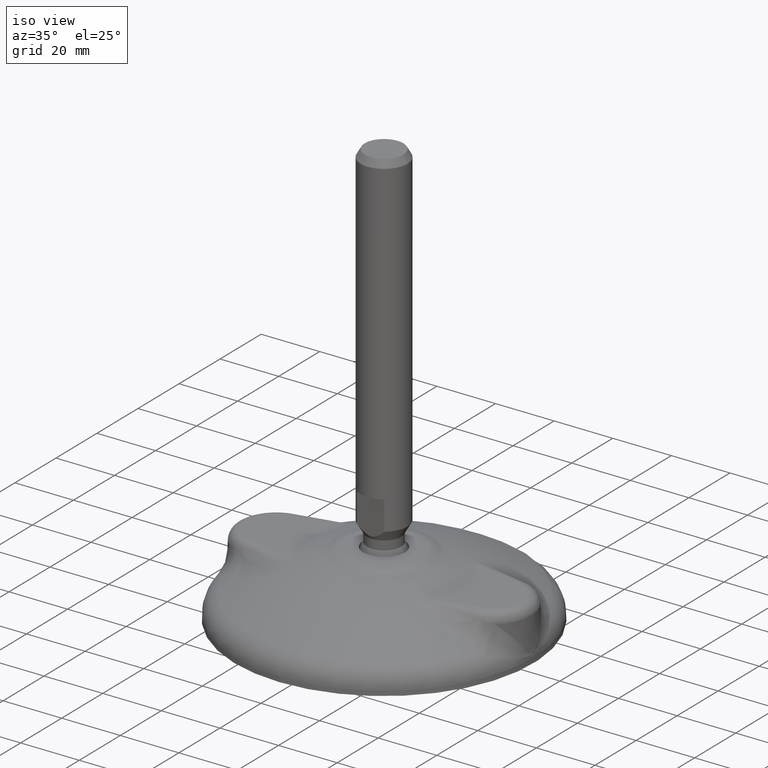
[diagram: clean part render]
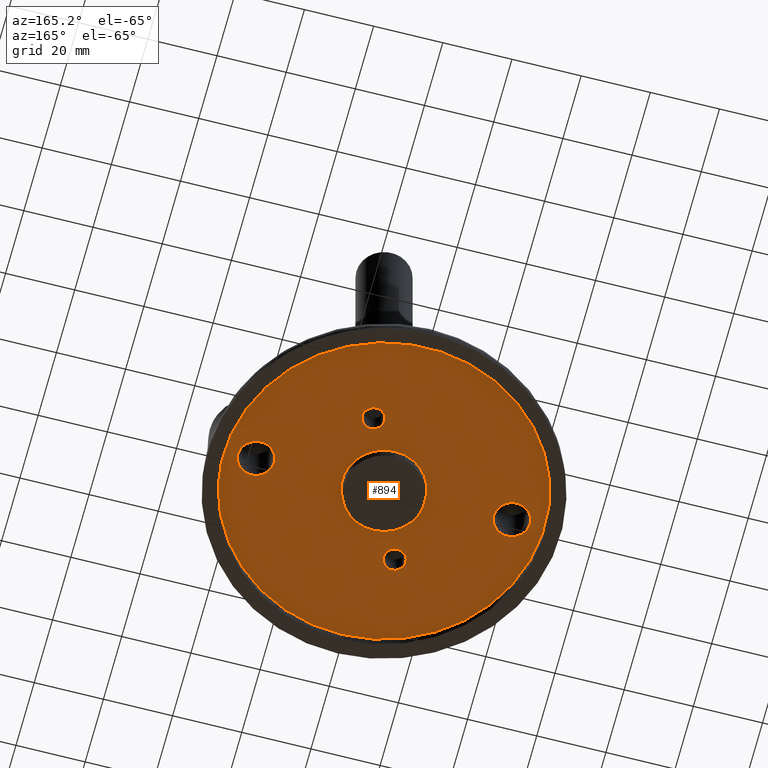
[diagram: tour spotlight — one face highlighted and labeled with its STEP entity id]
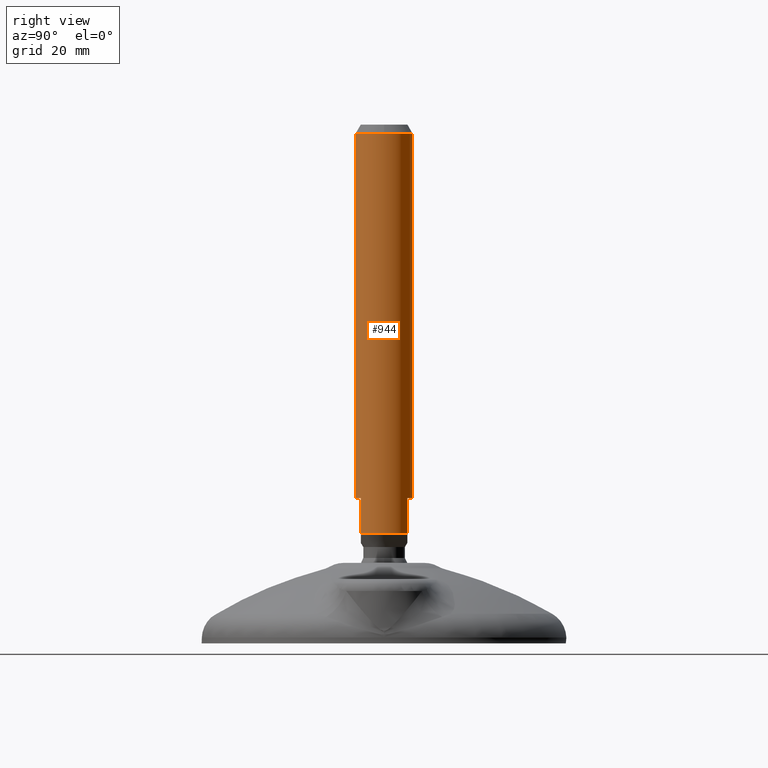
[diagram: tour spotlight — one face highlighted and labeled with its STEP entity id]
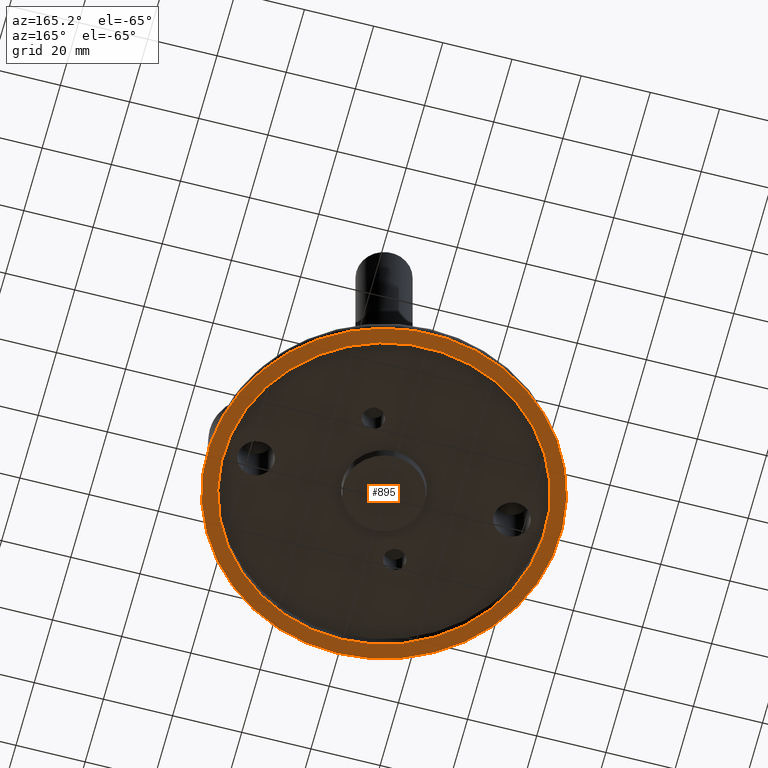
[diagram: tour spotlight — one face highlighted and labeled with its STEP entity id]
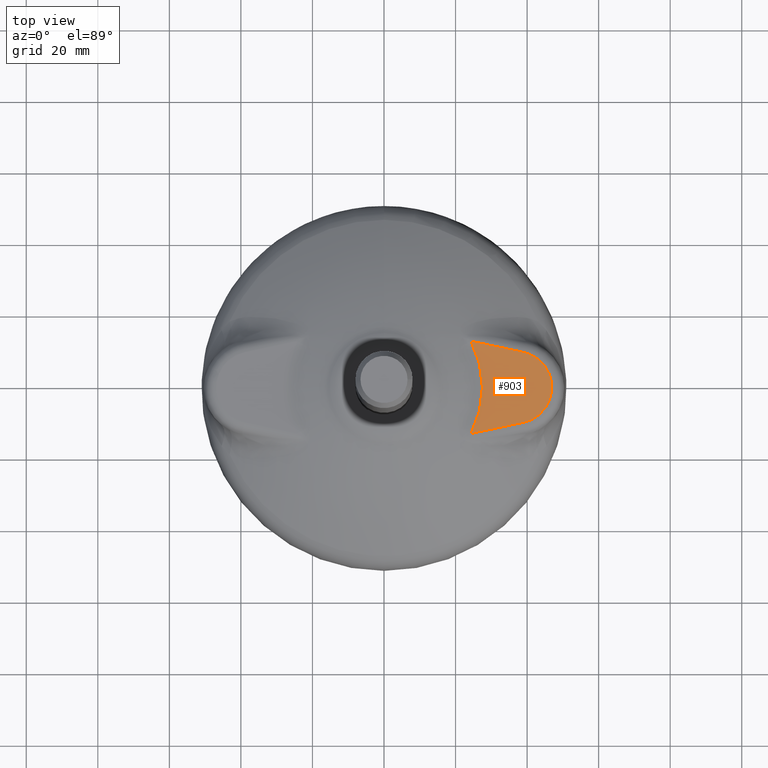
[diagram: tour spotlight — one face highlighted and labeled with its STEP entity id]
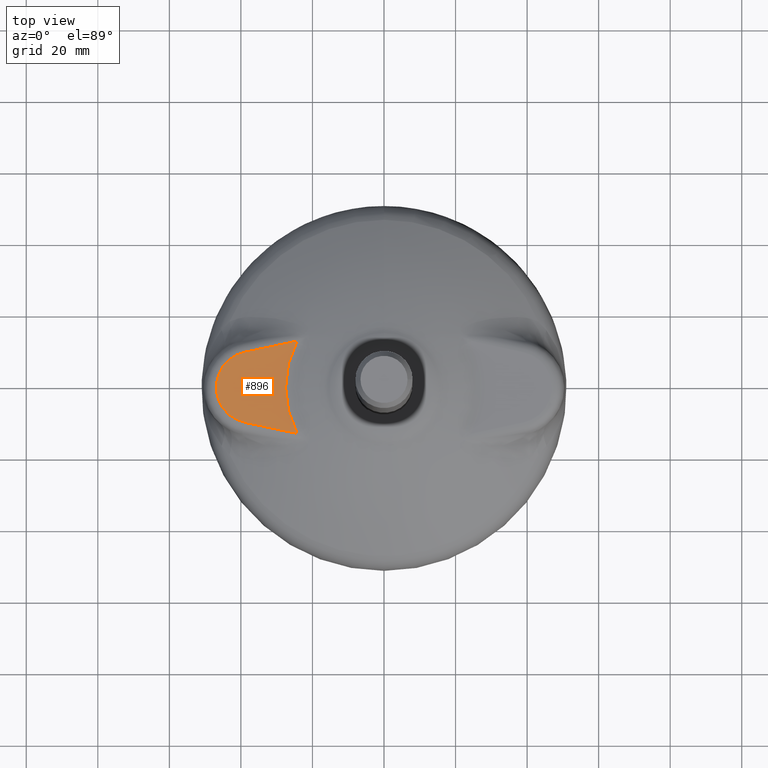
[diagram: tour spotlight — one face highlighted and labeled with its STEP entity id]
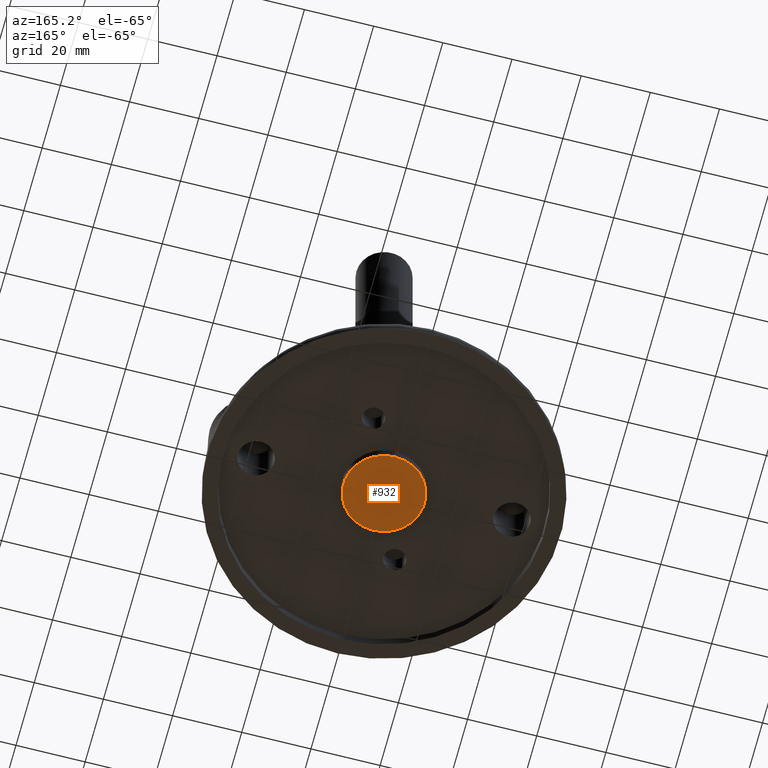
[diagram: tour spotlight — one face highlighted and labeled with its STEP entity id]
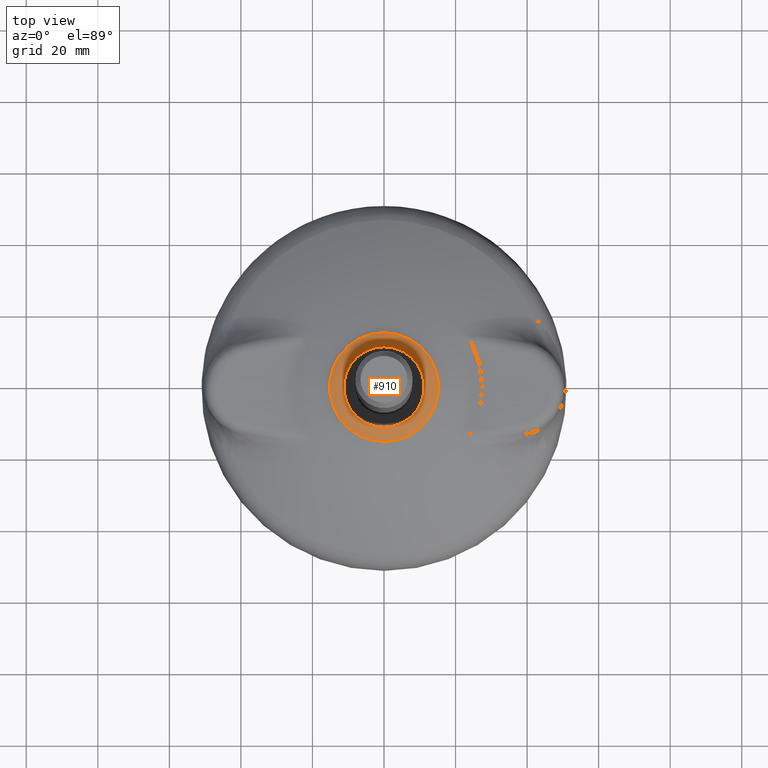
[diagram: tour spotlight — one face highlighted and labeled with its STEP entity id]
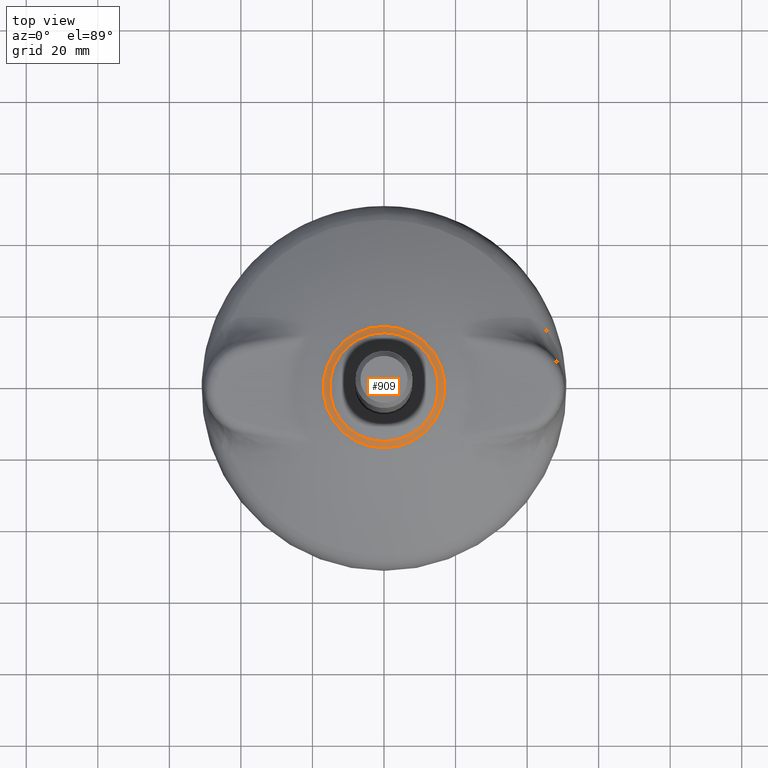
[diagram: tour spotlight — one face highlighted and labeled with its STEP entity id]
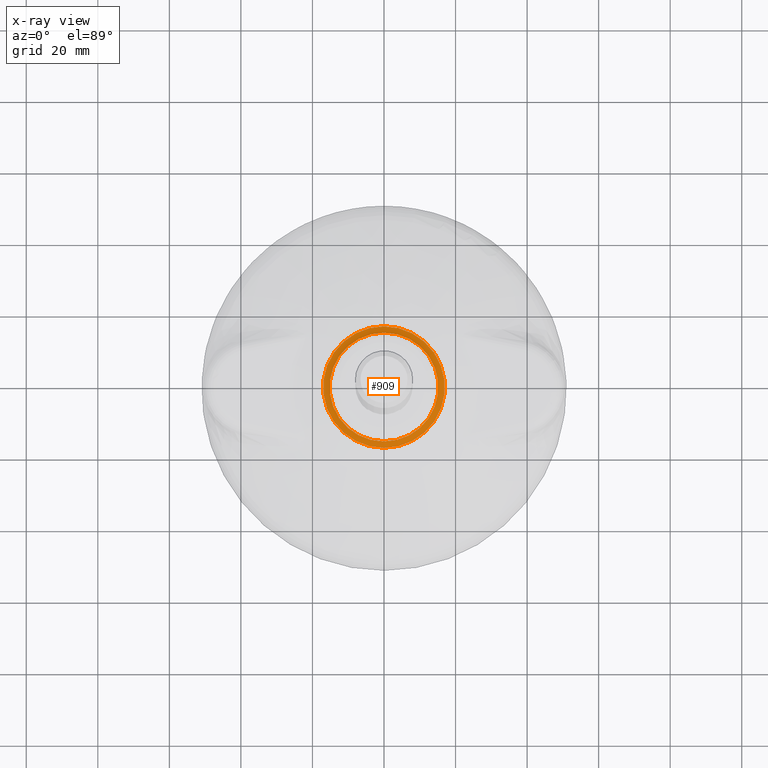
[diagram: x-ray of the same camera — body ghosted, this tour face saturated]
A machine part: a face-by-face anatomy tour. The part has 60 B-rep faces; the first image is the clean iso view, then the 8 largest visible faces are spotlighted one at a time (largest first), each with its STEP entity span.

Face 1 — auxiliary view, entity #894. In plain terms, the highlighted planar face has unit normal (0, 0, 1).
Definition (entity closure, byte-faithful):
#138=FACE_BOUND('',#206,.T.);
#139=FACE_BOUND('',#207,.T.);
#140=FACE_BOUND('',#208,.T.);
#141=FACE_BOUND('',#209,.T.);
#142=FACE_BOUND('',#210,.T.);
#145=FACE_OUTER_BOUND('',#205,.T.);
#205=EDGE_LOOP('',(#557));
#206=EDGE_LOOP('',(#558));
#207=EDGE_LOOP('',(#559));
#208=EDGE_LOOP('',(#560));
#209=EDGE_LOOP('',(#561));
#210=EDGE_LOOP('',(#562));
#272=CIRCLE('',#979,46.3985037042238);
#273=CIRCLE('',#980,5.25);
#274=CIRCLE('',#981,3.25);
#275=CIRCLE('',#982,3.25);
#276=CIRCLE('',#983,5.25);
#277=CIRCLE('',#984,11.9949682465201);
#346=VERTEX_POINT('',#1355);
#347=VERTEX_POINT('',#1357);
#348=VERTEX_POINT('',#1359);
#349=VERTEX_POINT('',#1361);
#350=VERTEX_POINT('',#1363);
#351=VERTEX_POINT('',#1365);
#427=EDGE_CURVE('',#346,#346,#272,.T.);
#428=EDGE_CURVE('',#347,#347,#273,.F.);
#429=EDGE_CURVE('',#348,#348,#274,.T.);
#430=EDGE_CURVE('',#349,#349,#275,.T.);
#431=EDGE_CURVE('',#350,#350,#276,.F.);
#432=EDGE_CURVE('',#351,#351,#277,.T.);
#557=ORIENTED_EDGE('',*,*,#427,.T.);
#558=ORIENTED_EDGE('',*,*,#428,.F.);
#559=ORIENTED_EDGE('',*,*,#429,.T.);
#560=ORIENTED_EDGE('',*,*,#430,.T.);
#561=ORIENTED_EDGE('',*,*,#431,.F.);
#562=ORIENTED_EDGE('',*,*,#432,.F.);
#817=PLANE('',#978);
#894=ADVANCED_FACE('',(#145,#138,#139,#140,#141,#142),#817,.F.);
#978=AXIS2_PLACEMENT_3D('',#1354,#1097,#1098);
#979=AXIS2_PLACEMENT_3D('',#1356,#1099,#1100);
#980=AXIS2_PLACEMENT_3D('',#1358,#1101,#1102);
#981=AXIS2_PLACEMENT_3D('',#1360,#1103,#1104);
#982=AXIS2_PLACEMENT_3D('',#1362,#1105,#1106);
#983=AXIS2_PLACEMENT_3D('',#1364,#1107,#1108);
#984=AXIS2_PLACEMENT_3D('',#1366,#1109,#1110);
#1097=DIRECTION('center_axis',(0.,1.171453E-15,1.));
#1098=DIRECTION('ref_axis',(0.,-1.,1.171453E-15));
#1099=DIRECTION('center_axis',(0.,-1.171453E-15,-1.));
#1100=DIRECTION('ref_axis',(0.,1.,-1.171453E-15));
#1101=DIRECTION('center_axis',(0.,1.171453E-15,1.));
#1102=DIRECTION('ref_axis',(0.,-1.,1.171453E-15));
#1103=DIRECTION('center_axis',(0.,1.171453E-15,1.));
#1104=DIRECTION('ref_axis',(0.,-1.,1.171453E-15));
#1105=DIRECTION('center_axis',(0.,1.171453E-15,1.));
#1106=DIRECTION('ref_axis',(0.,-1.,1.171453E-15));
#1107=DIRECTION('center_axis',(0.,1.171453E-15,1.));
#1108=DIRECTION('ref_axis',(0.,-1.,1.171453E-15));
#1109=DIRECTION('center_axis',(0.,-1.171453E-15,-1.));
#1110=DIRECTION('ref_axis',(0.,1.,-1.171453E-15));
#1354=CARTESIAN_POINT('Origin',(-46.3985037042238,-4.937801E-14,3.00000000000004));
#1355=CARTESIAN_POINT('',(-5.68217790466042E-15,-46.3985037042238,3.0000000000001));
#1356=CARTESIAN_POINT('Origin',(0.,7.02872E-15,3.00000000000004));
#1357=CARTESIAN_POINT('',(42.25,-6.42939569552361E-16,3.00000000000004));
#1358=CARTESIAN_POINT('Origin',(37.,3.51436E-15,3.00000000000004));
#1359=CARTESIAN_POINT('',(5.169035512032,20.3253497152484,2.99999999999999));
#1360=CARTESIAN_POINT('Origin',(8.419035512032,20.3253497152484,3.));
#1361=CARTESIAN_POINT('',(-11.669035512032,-20.3253497152482,3.00000000000009));
#1362=CARTESIAN_POINT('Origin',(-8.419035512032,-20.3253497152482,3.00000000000009));
#1363=CARTESIAN_POINT('',(-31.75,-6.42939569552361E-16,3.00000000000004));
#1364=CARTESIAN_POINT('Origin',(-37.,3.51436E-15,3.00000000000004));
#1365=CARTESIAN_POINT('',(0.,11.9949682465201,3.00000000000003));
#1366=CARTESIAN_POINT('Origin',(0.,7.02872E-15,3.00000000000004));

Face 2 — right view, entity #944. In plain terms, the highlighted cylindrical surface (bore or boss wall) has radius 8 mm, axis along (-0, 0, 1).
Definition (entity closure, byte-faithful):
#92=CYLINDRICAL_SURFACE('',#1073,7.99999979647845);
#106=LINE('',#5393,#128);
#107=LINE('',#5397,#129);
#108=LINE('',#5401,#130);
#109=LINE('',#5405,#131);
#110=LINE('',#5409,#132);
#128=VECTOR('',#1305,7.99999979647845);
#129=VECTOR('',#1308,1.);
#130=VECTOR('',#1311,1.);
#131=VECTOR('',#1314,1.);
#132=VECTOR('',#1317,1.);
#195=FACE_OUTER_BOUND('',#262,.T.);
#262=EDGE_LOOP('',(#769,#770,#771,#772,#773,#774,#775,#776,#777,#778,#779,
#780,#781));
#334=CIRCLE('',#1074,8.00000082115782);
#335=CIRCLE('',#1075,8.00000082115782);
#336=CIRCLE('',#1076,7.99999877179908);
#337=CIRCLE('',#1077,7.99999979647845);
#338=CIRCLE('',#1078,7.99999877179908);
#339=CIRCLE('',#1079,7.99999979647845);
#340=CIRCLE('',#1080,7.99999877179908);
#411=VERTEX_POINT('',#5388);
#412=VERTEX_POINT('',#5389);
#413=VERTEX_POINT('',#5392);
#414=VERTEX_POINT('',#5394);
#415=VERTEX_POINT('',#5396);
#416=VERTEX_POINT('',#5398);
#417=VERTEX_POINT('',#5400);
#418=VERTEX_POINT('',#5402);
#419=VERTEX_POINT('',#5404);
#420=VERTEX_POINT('',#5406);
#421=VERTEX_POINT('',#5408);
#533=EDGE_CURVE('',#411,#412,#334,.T.);
#534=EDGE_CURVE('',#412,#411,#335,.T.);
#535=EDGE_CURVE('',#412,#413,#106,.T.);
#536=EDGE_CURVE('',#413,#414,#336,.T.);
#537=EDGE_CURVE('',#414,#415,#107,.T.);
#538=EDGE_CURVE('',#415,#416,#337,.F.);
#539=EDGE_CURVE('',#416,#417,#108,.F.);
#540=EDGE_CURVE('',#417,#418,#338,.T.);
#541=EDGE_CURVE('',#419,#418,#109,.F.);
#542=EDGE_CURVE('',#420,#419,#339,.F.);
#543=EDGE_CURVE('',#421,#420,#110,.T.);
#544=EDGE_CURVE('',#421,#413,#340,.T.);
#769=ORIENTED_EDGE('',*,*,#533,.F.);
#770=ORIENTED_EDGE('',*,*,#534,.F.);
#771=ORIENTED_EDGE('',*,*,#535,.T.);
#772=ORIENTED_EDGE('',*,*,#536,.T.);
#773=ORIENTED_EDGE('',*,*,#537,.T.);
#774=ORIENTED_EDGE('',*,*,#538,.T.);
#775=ORIENTED_EDGE('',*,*,#539,.T.);
#776=ORIENTED_EDGE('',*,*,#540,.T.);
#777=ORIENTED_EDGE('',*,*,#541,.F.);
#778=ORIENTED_EDGE('',*,*,#542,.F.);
#779=ORIENTED_EDGE('',*,*,#543,.F.);
#780=ORIENTED_EDGE('',*,*,#544,.T.);
#781=ORIENTED_EDGE('',*,*,#535,.F.);
#944=ADVANCED_FACE('',(#195),#92,.T.);
#1073=AXIS2_PLACEMENT_3D('',#5387,#1299,#1300);
#1074=AXIS2_PLACEMENT_3D('',#5390,#1301,#1302);
#1075=AXIS2_PLACEMENT_3D('',#5391,#1303,#1304);
#1076=AXIS2_PLACEMENT_3D('',#5395,#1306,#1307);
#1077=AXIS2_PLACEMENT_3D('',#5399,#1309,#1310);
#1078=AXIS2_PLACEMENT_3D('',#5403,#1312,#1313);
#1079=AXIS2_PLACEMENT_3D('',#5407,#1315,#1316);
#1080=AXIS2_PLACEMENT_3D('',#5410,#1318,#1319);
#1299=DIRECTION('center_axis',(-1.3938298E-8,0.,1.));
#1300=DIRECTION('ref_axis',(1.,0.,1.3938298E-8));
#1301=DIRECTION('center_axis',(0.,0.,1.));
#1302=DIRECTION('ref_axis',(1.,0.,0.));
#1303=DIRECTION('center_axis',(0.,0.,1.));
#1304=DIRECTION('ref_axis',(1.,0.,0.));
#1305=DIRECTION('',(1.3938298E-8,0.,-1.));
#1306=DIRECTION('center_axis',(0.,0.,1.));
#1307=DIRECTION('ref_axis',(1.,0.,0.));
#1308=DIRECTION('',(-1.3938299E-8,0.,1.));
#1309=DIRECTION('center_axis',(5.158643E-16,-7.273662E-16,-1.));
#1310=DIRECTION('ref_axis',(0.,1.,-7.273662E-16));
#1311=DIRECTION('',(-1.3938299E-8,0.,1.));
#1312=DIRECTION('center_axis',(0.,0.,1.));
#1313=DIRECTION('ref_axis',(1.,0.,0.));
#1314=DIRECTION('',(-1.3938299E-8,0.,1.));
#1315=DIRECTION('center_axis',(-5.158643E-16,7.273662E-16,1.));
#1316=DIRECTION('ref_axis',(0.,-1.,7.273662E-16));
#1317=DIRECTION('',(-1.3938299E-8,0.,1.));
#1318=DIRECTION('center_axis',(0.,0.,1.));
#1319=DIRECTION('ref_axis',(1.,0.,0.));
#5387=CARTESIAN_POINT('Origin',(-2.831105206E-6,4.919660057E-6,145.649215401367));
#5388=CARTESIAN_POINT('',(7.99999803325988,4.919660057E-6,142.549320076457));
#5389=CARTESIAN_POINT('',(-8.00000258437639,4.91966005602028E-6,142.549320076457));
#5390=CARTESIAN_POINT('Origin',(-2.787897940598E-6,4.919660057E-6,142.549320076457));
#5391=CARTESIAN_POINT('Origin',(-2.787897940598E-6,4.919660057E-6,142.549320076457));
#5392=CARTESIAN_POINT('',(-8.00000102467937,4.91966005602028E-6,30.6492141813936));
#5393=CARTESIAN_POINT('',(-8.00000262758365,4.91966005602028E-6,145.649215289861));
#5394=CARTESIAN_POINT('',(-4.66368979020848,-6.4999948783487,30.649214811608));
#5395=CARTESIAN_POINT('Origin',(-1.228200899E-6,4.919660057E-6,30.6492144044064));
#5396=CARTESIAN_POINT('',(-4.66369054383021,-6.49999508071987,40.6492154013672));
#5397=CARTESIAN_POINT('',(-4.66369200853279,-6.49999508033994,145.649215336363));
#5398=CARTESIAN_POINT('',(4.66368781102494,-6.49999507996001,40.6492154013672));
#5399=CARTESIAN_POINT('Origin',(-1.367583916E-6,4.919660087E-6,40.6492154013672));
#5400=CARTESIAN_POINT('',(4.66368730962043,-6.49999487938715,30.6492148339938));
#5401=CARTESIAN_POINT('',(4.66368634632238,-6.49999508033994,145.649215466371));
#5402=CARTESIAN_POINT('',(4.66368730962043,6.50000471870726,30.6492148339938));
#5403=CARTESIAN_POINT('Origin',(-1.228200899E-6,4.919660057E-6,30.6492144044064));
#5404=CARTESIAN_POINT('',(4.66368781102496,6.50000491928013,40.6492154013672));
#5405=CARTESIAN_POINT('',(4.66368634632238,6.50000491966006,145.649215466371));
#5406=CARTESIAN_POINT('',(-4.66369054383023,6.50000492003999,40.6492154013672));
#5407=CARTESIAN_POINT('Origin',(-1.367583916E-6,4.919660087E-6,40.6492154013672));
#5408=CARTESIAN_POINT('',(-4.66368979020852,6.5000047176688,30.6492148116081));
#5409=CARTESIAN_POINT('',(-4.66369200853279,6.50000491966006,145.649215336363));
#5410=CARTESIAN_POINT('Origin',(-1.228200899E-6,4.919660057E-6,30.6492144044064));

Face 3 — auxiliary view, entity #895. In plain terms, the highlighted planar face has unit normal (0, 0, 1).
Definition (entity closure, byte-faithful):
#143=FACE_BOUND('',#212,.T.);
#146=FACE_OUTER_BOUND('',#211,.T.);
#211=EDGE_LOOP('',(#563));
#212=EDGE_LOOP('',(#564));
#278=CIRCLE('',#986,51.0059948985812);
#279=CIRCLE('',#987,46.5032577445684);
#352=VERTEX_POINT('',#1368);
#353=VERTEX_POINT('',#1370);
#433=EDGE_CURVE('',#352,#352,#278,.T.);
#434=EDGE_CURVE('',#353,#353,#279,.F.);
#563=ORIENTED_EDGE('',*,*,#433,.F.);
#564=ORIENTED_EDGE('',*,*,#434,.F.);
#818=PLANE('',#985);
#895=ADVANCED_FACE('',(#146,#143),#818,.F.);
#985=AXIS2_PLACEMENT_3D('',#1367,#1111,#1112);
#986=AXIS2_PLACEMENT_3D('',#1369,#1113,#1114);
#987=AXIS2_PLACEMENT_3D('',#1371,#1115,#1116);
#1111=DIRECTION('center_axis',(0.,0.,1.));
#1112=DIRECTION('ref_axis',(1.,0.,0.));
#1113=DIRECTION('center_axis',(0.,0.,1.));
#1114=DIRECTION('ref_axis',(0.,1.,-1.171453E-15));
#1115=DIRECTION('center_axis',(0.,0.,1.));
#1116=DIRECTION('ref_axis',(1.,0.,0.));
#1367=CARTESIAN_POINT('Origin',(-36.9,1.729065E-13,4.352074E-14));
#1368=CARTESIAN_POINT('',(0.,-51.0059948985812,4.35762537165374E-14));
#1369=CARTESIAN_POINT('Origin',(0.,7.04756674839387E-23,4.35762537165374E-14));
#1370=CARTESIAN_POINT('',(-5.69500657468101E-15,-46.5032577445684,4.32986979603811E-14));
#1371=CARTESIAN_POINT('Origin',(5.416568E-15,3.51436E-15,4.336809E-14));

Face 4 — top view, entity #903. In plain terms, the highlighted planar face has unit normal (0, 0, 1).
Definition (entity closure, byte-faithful):
#96=LINE('',#3362,#118);
#97=LINE('',#3366,#119);
#118=VECTOR('',#1163,1.);
#119=VECTOR('',#1166,1.);
#154=FACE_OUTER_BOUND('',#220,.T.);
#220=EDGE_LOOP('',(#617,#618,#619,#620));
#295=CIRCLE('',#1010,27.5170021834659);
#296=CIRCLE('',#1011,9.99751007502379);
#387=VERTEX_POINT('',#3360);
#388=VERTEX_POINT('',#3361);
#389=VERTEX_POINT('',#3363);
#390=VERTEX_POINT('',#3365);
#476=EDGE_CURVE('',#387,#388,#96,.F.);
#477=EDGE_CURVE('',#388,#389,#295,.F.);
#478=EDGE_CURVE('',#389,#390,#97,.F.);
#479=EDGE_CURVE('',#390,#387,#296,.T.);
#617=ORIENTED_EDGE('',*,*,#476,.T.);
#618=ORIENTED_EDGE('',*,*,#477,.T.);
#619=ORIENTED_EDGE('',*,*,#478,.T.);
#620=ORIENTED_EDGE('',*,*,#479,.T.);
#820=PLANE('',#1009);
#903=ADVANCED_FACE('',(#154),#820,.T.);
#1009=AXIS2_PLACEMENT_3D('',#3359,#1161,#1162);
#1010=AXIS2_PLACEMENT_3D('',#3364,#1164,#1165);
#1011=AXIS2_PLACEMENT_3D('',#3367,#1167,#1168);
#1161=DIRECTION('center_axis',(0.,0.,1.));
#1162=DIRECTION('ref_axis',(1.,0.,0.));
#1163=DIRECTION('',(0.978147600734718,-0.207911690813467,0.));
#1164=DIRECTION('center_axis',(0.,0.,1.));
#1165=DIRECTION('ref_axis',(1.,0.,0.));
#1166=DIRECTION('',(-0.978147600734719,-0.207911690813462,0.));
#1167=DIRECTION('center_axis',(0.,0.,1.));
#1168=DIRECTION('ref_axis',(1.,0.,0.));
#3359=CARTESIAN_POINT('Origin',(36.9,-8.645326E-14,18.));
#3360=CARTESIAN_POINT('',(38.9785992236228,9.77904049320544,18.));
#3361=CARTESIAN_POINT('',(24.3071728847043,12.8975484305337,18.));
#3362=CARTESIAN_POINT('',(38.9785992236228,9.77904049320545,18.));
#3363=CARTESIAN_POINT('',(24.3071728847042,-12.897548430534,18.));
#3364=CARTESIAN_POINT('Origin',(0.,-1.131577E-13,18.));
#3365=CARTESIAN_POINT('',(38.9785992236228,-9.77904049320579,18.));
#3366=CARTESIAN_POINT('',(38.9785992236228,-9.7790404932058,18.));
#3367=CARTESIAN_POINT('Origin',(36.9,-8.645326E-14,18.));

Face 5 — top view, entity #896. In plain terms, the highlighted planar face has unit normal (0, 0, 1).
Definition (entity closure, byte-faithful):
#94=LINE('',#1375,#116);
#95=LINE('',#1379,#117);
#116=VECTOR('',#1119,0.999999999999998);
#117=VECTOR('',#1122,1.);
#147=FACE_OUTER_BOUND('',#213,.T.);
#213=EDGE_LOOP('',(#565,#566,#567,#568));
#280=CIRCLE('',#989,27.5170021834659);
#281=CIRCLE('',#990,9.99751007502379);
#354=VERTEX_POINT('',#1373);
#355=VERTEX_POINT('',#1374);
#356=VERTEX_POINT('',#1376);
#357=VERTEX_POINT('',#1378);
#435=EDGE_CURVE('',#354,#355,#94,.F.);
#436=EDGE_CURVE('',#355,#356,#280,.F.);
#437=EDGE_CURVE('',#356,#357,#95,.F.);
#438=EDGE_CURVE('',#357,#354,#281,.T.);
#565=ORIENTED_EDGE('',*,*,#435,.T.);
#566=ORIENTED_EDGE('',*,*,#436,.T.);
#567=ORIENTED_EDGE('',*,*,#437,.T.);
#568=ORIENTED_EDGE('',*,*,#438,.T.);
#819=PLANE('',#988);
#896=ADVANCED_FACE('',(#147),#819,.T.);
#988=AXIS2_PLACEMENT_3D('',#1372,#1117,#1118);
#989=AXIS2_PLACEMENT_3D('',#1377,#1120,#1121);
#990=AXIS2_PLACEMENT_3D('',#1380,#1123,#1124);
#1117=DIRECTION('center_axis',(0.,0.,1.));
#1118=DIRECTION('ref_axis',(1.,0.,0.));
#1119=DIRECTION('',(-0.978147600734717,0.20791169081347,0.));
#1120=DIRECTION('center_axis',(0.,0.,1.));
#1121=DIRECTION('ref_axis',(1.,0.,0.));
#1122=DIRECTION('',(0.97814760073472,0.20791169081346,0.));
#1123=DIRECTION('center_axis',(0.,0.,1.));
#1124=DIRECTION('ref_axis',(1.,0.,0.));
#1372=CARTESIAN_POINT('Origin',(-36.9,1.729065E-13,18.));
#1373=CARTESIAN_POINT('',(-38.9785992236229,-9.77904049320534,18.));
#1374=CARTESIAN_POINT('',(-24.3071728847044,-12.8975484305336,18.));
#1375=CARTESIAN_POINT('',(-38.9785992236229,-9.77904049320536,18.));
#1376=CARTESIAN_POINT('',(-24.3071728847041,12.8975484305341,18.));
#1377=CARTESIAN_POINT('Origin',(0.,-1.131577E-13,18.));
#1378=CARTESIAN_POINT('',(-38.9785992236228,9.77904049320588,18.));
#1379=CARTESIAN_POINT('',(-38.9785992236228,9.7790404932059,18.));
#1380=CARTESIAN_POINT('Origin',(-36.9,1.729065E-13,18.));

Face 6 — auxiliary view, entity #932. In plain terms, the highlighted planar face has unit normal (0, 0, 1).
Definition (entity closure, byte-faithful):
#183=FACE_OUTER_BOUND('',#250,.T.);
#250=EDGE_LOOP('',(#733));
#323=CIRCLE('',#1049,11.7325022559424);
#401=VERTEX_POINT('',#5346);
#516=EDGE_CURVE('',#401,#401,#323,.F.);
#733=ORIENTED_EDGE('',*,*,#516,.T.);
#822=PLANE('',#1051);
#932=ADVANCED_FACE('',(#183),#822,.F.);
#1049=AXIS2_PLACEMENT_3D('',#5348,#1245,#1246);
#1051=AXIS2_PLACEMENT_3D('',#5351,#1250,#1251);
#1245=DIRECTION('center_axis',(0.,0.,1.));
#1246=DIRECTION('ref_axis',(1.,0.,0.));
#1250=DIRECTION('center_axis',(0.,0.,1.));
#1251=DIRECTION('ref_axis',(1.,0.,0.));
#5346=CARTESIAN_POINT('',(-1.43681713337289E-15,11.7325022559424,1.66533453693773E-14));
#5348=CARTESIAN_POINT('Origin',(-2.311909E-15,3.51436E-15,4.336809E-14));
#5351=CARTESIAN_POINT('Origin',(-36.9,1.729065E-13,4.352074E-14));

Face 7 — top view, entity #910. In plain terms, the highlighted toroidal blend (fillet) surface has major radius 11.25 mm and minor (blend) radius 8 mm.
Definition (entity closure, byte-faithful):
#40=TOROIDAL_SURFACE('',#1023,11.2500000000002,8.);
#161=FACE_OUTER_BOUND('',#227,.T.);
#227=EDGE_LOOP('',(#647,#648,#649,#650));
#300=CIRCLE('',#1021,15.2112618341804);
#302=CIRCLE('',#1024,11.2500000000003);
#303=CIRCLE('',#1025,8.);
#398=VERTEX_POINT('',#4175);
#399=VERTEX_POINT('',#4179);
#492=EDGE_CURVE('',#398,#398,#300,.T.);
#494=EDGE_CURVE('',#399,#399,#302,.T.);
#495=EDGE_CURVE('',#399,#398,#303,.T.);
#647=ORIENTED_EDGE('',*,*,#494,.F.);
#648=ORIENTED_EDGE('',*,*,#495,.T.);
#649=ORIENTED_EDGE('',*,*,#492,.T.);
#650=ORIENTED_EDGE('',*,*,#495,.F.);
#910=ADVANCED_FACE('',(#161),#40,.T.);
#1021=AXIS2_PLACEMENT_3D('',#4176,#1188,#1189);
#1023=AXIS2_PLACEMENT_3D('',#4178,#1192,#1193);
#1024=AXIS2_PLACEMENT_3D('',#4180,#1194,#1195);
#1025=AXIS2_PLACEMENT_3D('',#4181,#1196,#1197);
#1188=DIRECTION('center_axis',(0.,1.171453E-15,1.));
#1189=DIRECTION('ref_axis',(0.,-1.,1.171453E-15));
#1192=DIRECTION('center_axis',(0.,1.171453E-15,1.));
#1193=DIRECTION('ref_axis',(0.,-1.,1.10733932845729E-15));
#1194=DIRECTION('center_axis',(0.,1.171453E-15,1.));
#1195=DIRECTION('ref_axis',(0.,-1.,1.171453E-15));
#1196=DIRECTION('center_axis',(-1.,-1.22464679914735E-16,1.43461616680156E-31));
#1197=DIRECTION('ref_axis',(-1.22464679914735E-16,1.,-1.15347846714301E-15));
#4175=CARTESIAN_POINT('',(-1.86284231162213E-15,15.2112618341804,21.4504322563353));
#4176=CARTESIAN_POINT('Origin',(0.,5.025636E-14,21.4504322563353));
#4178=CARTESIAN_POINT('Origin',(0.,1.698608E-14,14.5000074721176));
#4179=CARTESIAN_POINT('',(-1.37772764904081E-15,11.2500000000004,22.5000074721176));
#4180=CARTESIAN_POINT('Origin',(0.,5.271542E-14,22.5000074721176));
#4181=CARTESIAN_POINT('Origin',(-1.3777276490408E-15,11.2500000000002,14.5000074721176));

Face 8 — top view, entity #909. An x-ray twin of the same camera follows (body ghosted, this face saturated) — the face is partly hidden behind the body. In plain terms, the highlighted toroidal blend (fillet) surface has major radius 18.733 mm and minor (blend) radius 7 mm.
Definition (entity closure, byte-faithful):
#39=TOROIDAL_SURFACE('',#1020,18.7330000000003,7.);
#160=FACE_OUTER_BOUND('',#226,.T.);
#226=EDGE_LOOP('',(#643,#644,#645,#646));
#291=CIRCLE('',#1005,16.986756733163);
#300=CIRCLE('',#1021,15.2112618341804);
#301=CIRCLE('',#1022,7.);
#378=VERTEX_POINT('',#2720);
#398=VERTEX_POINT('',#4175);
#464=EDGE_CURVE('',#378,#378,#291,.T.);
#492=EDGE_CURVE('',#398,#398,#300,.T.);
#493=EDGE_CURVE('',#398,#378,#301,.T.);
#643=ORIENTED_EDGE('',*,*,#492,.F.);
#644=ORIENTED_EDGE('',*,*,#493,.T.);
#645=ORIENTED_EDGE('',*,*,#464,.T.);
#646=ORIENTED_EDGE('',*,*,#493,.F.);
#909=ADVANCED_FACE('',(#160),#39,.F.);
#1005=AXIS2_PLACEMENT_3D('',#2721,#1153,#1154);
#1020=AXIS2_PLACEMENT_3D('',#4174,#1186,#1187);
#1021=AXIS2_PLACEMENT_3D('',#4176,#1188,#1189);
#1022=AXIS2_PLACEMENT_3D('',#4177,#1190,#1191);
#1153=DIRECTION('center_axis',(0.,1.171453E-15,1.));
#1154=DIRECTION('ref_axis',(0.,-1.,1.171453E-15));
#1186=DIRECTION('center_axis',(0.,1.171453E-15,1.));
#1187=DIRECTION('ref_axis',(0.,-1.,1.10448488051932E-15));
#1188=DIRECTION('center_axis',(0.,1.171453E-15,1.));
#1189=DIRECTION('ref_axis',(0.,-1.,1.171453E-15));
#1190=DIRECTION('center_axis',(1.,1.22464679914735E-16,-1.43461616680156E-31));
#1191=DIRECTION('ref_axis',(-1.22464679914735E-16,1.,-1.20803033806801E-15));
#2720=CARTESIAN_POINT('',(-2.08027772611628E-15,16.986756733163,20.7213177423081));
#2721=CARTESIAN_POINT('Origin',(0.,4.854811E-14,20.7213177423081));
#4174=CARTESIAN_POINT('Origin',(0.,3.221498E-14,27.5000074721176));
#4175=CARTESIAN_POINT('',(-1.86284231162213E-15,15.2112618341804,21.4504322563353));
#4176=CARTESIAN_POINT('Origin',(0.,5.025636E-14,21.4504322563353));
#4177=CARTESIAN_POINT('Origin',(-2.29413084884277E-15,18.7330000000003,
27.5000074721176));